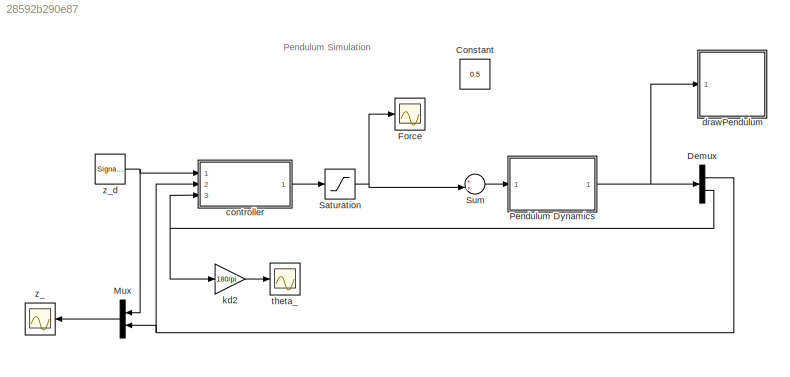
MODEL slx_28592b290e87
KIND model
CONFIG AbsTol = auto
CONFIG FixedStep = auto
CONFIG InitFcn = param
CONFIG MaxStep = auto
CONFIG MinStep = auto
CONFIG RelTol = 1e-3
CONFIG SampleTimeConstraint = Unconstrained
CONFIG Solver = ode45
CONFIG SolverMode = Auto
CONFIG SolverName = ode45
CONFIG StartTime = 0.0
CONFIG StopTime = 300
BLOCK [Constant] Constant
  Value = 0.5
BLOCK [Demux] Demux
  DisplayOption = bar
  Outputs = 2
  Ports = [1, 2]
BLOCK [Scope] Force
  DataFormat = StructureWithTime
  Floating = off
  NumInputPorts = 1
  Ports = [1]
  SampleTime = 0
  SaveName = ScopeData2
  TimeRange = 49.99
BLOCK [Mux] Mux
  DisplayOption = bar
  Inputs = 2
  Ports = [2, 1]
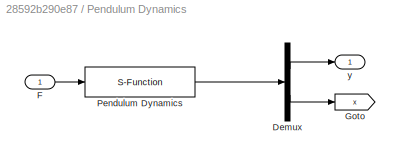
BLOCK [SubSystem] Pendulum Dynamics
  Ports = [1, 1]
  RequestExecContextInheritance = off
BLOCK [Demux] Pendulum Dynamics/Demux
  DisplayOption = bar
  Outputs = [2;4]
  Ports = [1, 2]
BLOCK [Inport] Pendulum Dynamics/F
  IconDisplay = Port number
BLOCK [Goto] Pendulum Dynamics/Goto
  GotoTag = x
  TagVisibility = global
BLOCK [S-Function] Pendulum Dynamics/Pendulum Dynamics
  FunctionName = pendulum_dynamics
  Parameters = AP
  Ports = [1, 1]
BLOCK [Outport] Pendulum Dynamics/y
  IconDisplay = Port number
BLOCK [Saturate] Saturation
  InputPortMap = u0
  LowerLimit = -P.F_max
  Ports = [1, 1]
  UpperLimit = P.F_max
BLOCK [Sum] Sum
  IconShape = round
  InputSameDT = off
  Inputs = ++|
  OutDataTypeStr = Inherit: Inherit via internal rule
  Ports = [2, 1]
  SaturateOnIntegerOverflow = off
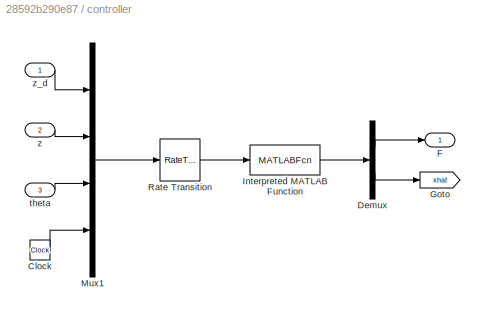
BLOCK [SubSystem] controller
  Ports = [3, 1]
  RequestExecContextInheritance = off
BLOCK [Clock] controller/Clock
BLOCK [Demux] controller/Demux
  DisplayOption = bar
  Outputs = [1;4]
  Ports = [1, 2]
BLOCK [Outport] controller/F
  IconDisplay = Port number
BLOCK [Goto] controller/Goto
  GotoTag = xhat
  TagVisibility = global
BLOCK [MATLABFcn] controller/Interpreted MATLAB Function
  MATLABFcn = pendulum_ctrl(u,P)
  OutputDimensions = 1+4
  Ports = [1, 1]
BLOCK [Mux] controller/Mux1
  DisplayOption = bar
  Ports = [4, 1]
BLOCK [RateTransition] controller/Rate Transition
  OutPortSampleTime = P.Ts
BLOCK [Inport] controller/theta
  IconDisplay = Port number
  Port = 3
BLOCK [Inport] controller/z
  IconDisplay = Port number
  Port = 2
BLOCK [Inport] controller/z_d
  IconDisplay = Port number
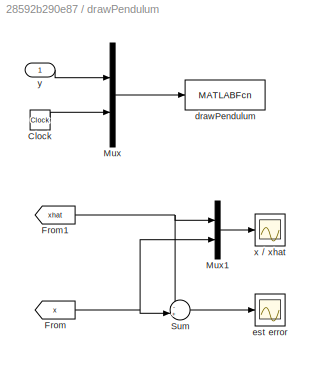
BLOCK [SubSystem] drawPendulum
  Ports = [1]
  RequestExecContextInheritance = off
BLOCK [Clock] drawPendulum/Clock
BLOCK [From] drawPendulum/From
  GotoTag = x
  TagVisibility = global
BLOCK [From] drawPendulum/From1
  GotoTag = xhat
  TagVisibility = global
BLOCK [Mux] drawPendulum/Mux
  DisplayOption = bar
  Inputs = 2
  Ports = [2, 1]
BLOCK [Mux] drawPendulum/Mux1
  DisplayOption = bar
  Inputs = 2
  Ports = [2, 1]
BLOCK [Sum] drawPendulum/Sum
  IconShape = round
  InputSameDT = off
  Inputs = -+|
  OutDataTypeStr = Inherit: Inherit via internal rule
  Ports = [2, 1]
  SaturateOnIntegerOverflow = off
BLOCK [MATLABFcn] drawPendulum/drawPendulum
  MATLABFcn = drawPendulum(u)
  OutputDimensions = 0
  Ports = [1]
  SampleTime = 0.1
BLOCK [Scope] drawPendulum/est error
  DataFormat = StructureWithTime
  Floating = off
  NumInputPorts = 1
  Ports = [1]
  SampleTime = 0
  SaveName = ScopeData3
  TimeRange = 40
  YMax = 0.0225
  YMin = -0.0325
BLOCK [Scope] drawPendulum/x // xhat
  DataFormat = StructureWithTime
  Floating = off
  NumInputPorts = 1
  Ports = [1]
  SampleTime = 0
  SaveName = ScopeData4
  TimeRange = 40
  YMax = 2
  YMin = -2
BLOCK [Inport] drawPendulum/y
  IconDisplay = Port number
BLOCK [Gain] kd2
  Gain = 180/pi
  OutDataTypeStr = Inherit: Inherit via internal rule
  ParamDataTypeStr = Inherit: Inherit via internal rule
  SaturateOnIntegerOverflow = off
BLOCK [Scope] theta_
  DataFormat = StructureWithTime
  Floating = off
  NumInputPorts = 1
  Ports = [1]
  SampleTime = 0
  TimeRange = 49.99
  YMax = 4
  YMin = -4
BLOCK [Scope] z_
  DataFormat = StructureWithTime
  Floating = off
  NumInputPorts = 1
  Ports = [1]
  SampleTime = 0
  SaveName = ScopeData1
  TimeRange = 49.99
  YMax = 1
  YMin = -1
BLOCK [SignalGenerator] z_d
  Amplitude = 0.5
  Frequency = .02
  Ports = [0, 1]
  WaveForm = square
ANNOTATION (root): Pendulum Simulation
NET Demux:1 -> Mux:2, controller:2
NET Demux:2 -> controller:3, kd2:1
LINE Mux:1 -> z_:1
LINE Pendulum Dynamics/Demux:1 -> Pendulum Dynamics/y:1
LINE Pendulum Dynamics/Demux:2 -> Pendulum Dynamics/Goto:1
LINE Pendulum Dynamics/F:1 -> Pendulum Dynamics/Pendulum Dynamics:1
LINE Pendulum Dynamics/Pendulum Dynamics:1 -> Pendulum Dynamics/Demux:1
NET Pendulum Dynamics:1 -> Demux:1, drawPendulum:1
NET Saturation:1 -> Force:1, Sum:2
LINE Sum:1 -> Pendulum Dynamics:1
LINE controller/Clock:1 -> controller/Mux1:4
LINE controller/Demux:1 -> controller/F:1
LINE controller/Demux:2 -> controller/Goto:1
LINE controller/Interpreted MATLAB Function:1 -> controller/Demux:1
LINE controller/Mux1:1 -> controller/Rate Transition:1
LINE controller/Rate Transition:1 -> controller/Interpreted MATLAB Function:1
LINE controller/theta:1 -> controller/Mux1:3
LINE controller/z:1 -> controller/Mux1:2
LINE controller/z_d:1 -> controller/Mux1:1
LINE controller:1 -> Saturation:1
LINE drawPendulum/Clock:1 -> drawPendulum/Mux:2
NET drawPendulum/From1:1 -> drawPendulum/Mux1:1, drawPendulum/Sum:1
NET drawPendulum/From:1 -> drawPendulum/Mux1:2, drawPendulum/Sum:2
LINE drawPendulum/Mux1:1 -> drawPendulum/x // xhat:1
LINE drawPendulum/Mux:1 -> drawPendulum/drawPendulum:1
LINE drawPendulum/Sum:1 -> drawPendulum/est error:1
LINE drawPendulum/y:1 -> drawPendulum/Mux:1
LINE kd2:1 -> theta_:1
NET z_d:1 -> Mux:1, controller:1
note: NET lines group one-source signal fan-out (src -> all destinations, sorted); 1:1 wires keep LINE
